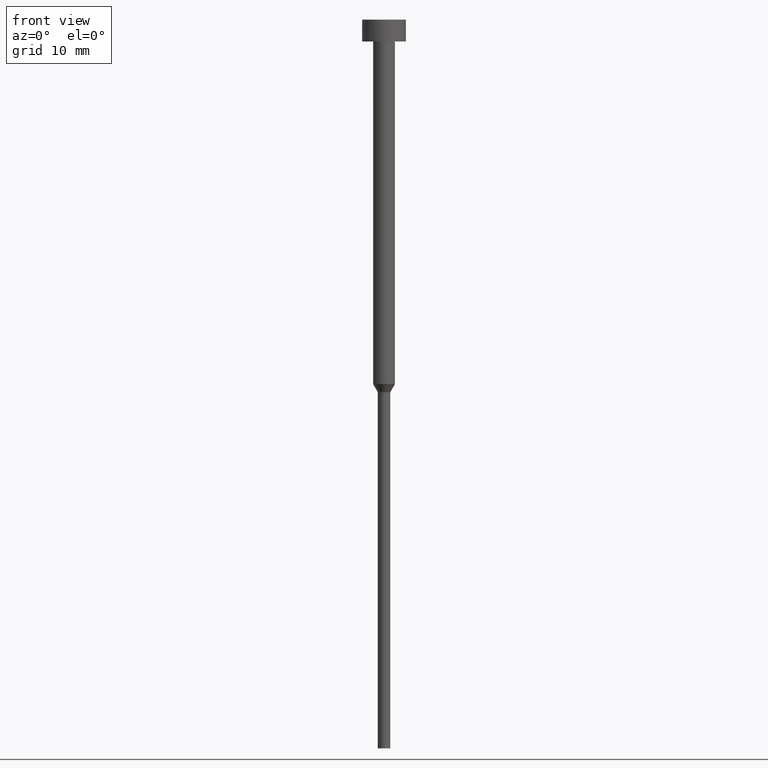
[diagram: clean part render]
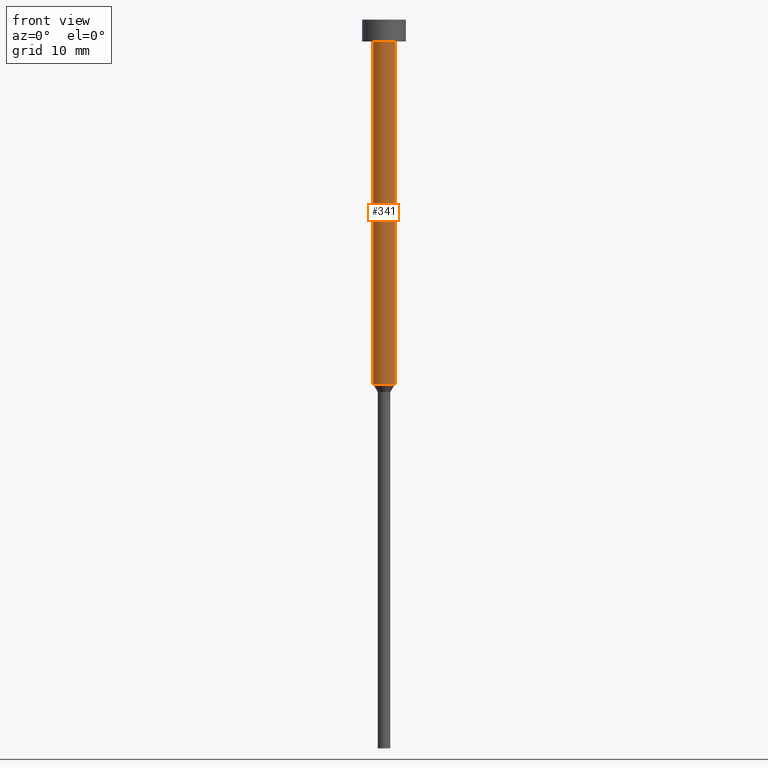
[diagram: same view with one face highlighted and labeled with its STEP entity id]
A machine part, front view. The second image highlights one B-rep face of the part: STEP entity #341.
In plain terms, the highlighted cylindrical surface (edge-blend (fillet) strip) has radius 1.5 mm, axis along (-0, -0, 1).
Its self-contained STEP definition (entity closure, byte-faithful):
#3 = CARTESIAN_POINT ( 'NONE',  ( 0.000000000000000000, 0.000000000000000000, -50.00000000000000000 ) ) ;
#12 = EDGE_CURVE ( 'NONE', #46, #157, #241, .T. ) ;
#16 = VERTEX_POINT ( 'NONE', #337 ) ;
#23 = EDGE_CURVE ( 'NONE', #16, #46, #120, .T. ) ;
#25 = LINE ( 'NONE', #275, #286 ) ;
#27 = CYLINDRICAL_SURFACE ( 'NONE', #93, 1.500000000000000000 ) ;
#46 = VERTEX_POINT ( 'NONE', #91 ) ;
#52 = FACE_OUTER_BOUND ( 'NONE', #349, .T. ) ;
#77 = CIRCLE ( 'NONE', #348, 1.500000000000000000 ) ;
#88 = DIRECTION ( 'NONE',  ( -0.000000000000000000, -0.000000000000000000, 1.000000000000000000 ) ) ;
#91 = CARTESIAN_POINT ( 'NONE',  ( -1.500000000000000000, 1.836970198721029934E-16, -3.000000000000000888 ) ) ;
#93 = AXIS2_PLACEMENT_3D ( 'NONE', #270, #308, #207 ) ;
#94 = EDGE_CURVE ( 'NONE', #340, #157, #25, .T. ) ;
#99 = VECTOR ( 'NONE', #334, 1000.000000000000000 ) ;
#101 = CARTESIAN_POINT ( 'NONE',  ( 0.000000000000000000, 0.000000000000000000, -3.000000000000000888 ) ) ;
#104 = ORIENTED_EDGE ( 'NONE', *, *, #94, .T. ) ;
#113 = AXIS2_PLACEMENT_3D ( 'NONE', #101, #125, #314 ) ;
#120 = LINE ( 'NONE', #231, #99 ) ;
#125 = DIRECTION ( 'NONE',  ( -0.000000000000000000, -0.000000000000000000, 1.000000000000000000 ) ) ;
#133 = ORIENTED_EDGE ( 'NONE', *, *, #258, .T. ) ;
#135 = DIRECTION ( 'NONE',  ( -0.000000000000000000, -0.000000000000000000, 1.000000000000000000 ) ) ;
#157 = VERTEX_POINT ( 'NONE', #272 ) ;
#207 = DIRECTION ( 'NONE',  ( 1.000000000000000000, 0.000000000000000000, 0.000000000000000000 ) ) ;
#231 = CARTESIAN_POINT ( 'NONE',  ( -1.500000000000000000, 1.836970198721029934E-16, 0.000000000000000000 ) ) ;
#241 = CIRCLE ( 'NONE', #113, 1.500000000000000000 ) ;
#258 = EDGE_CURVE ( 'NONE', #16, #340, #77, .T. ) ;
#270 = CARTESIAN_POINT ( 'NONE',  ( 0.000000000000000000, 0.000000000000000000, 0.000000000000000000 ) ) ;
#272 = CARTESIAN_POINT ( 'NONE',  ( 1.500000000000000000, 0.000000000000000000, -3.000000000000000888 ) ) ;
#275 = CARTESIAN_POINT ( 'NONE',  ( 1.500000000000000000, 0.000000000000000000, 0.000000000000000000 ) ) ;
#286 = VECTOR ( 'NONE', #135, 1000.000000000000000 ) ;
#292 = CARTESIAN_POINT ( 'NONE',  ( 1.500000000000000000, 0.000000000000000000, -50.00000000000000000 ) ) ;
#299 = DIRECTION ( 'NONE',  ( 1.000000000000000000, 0.000000000000000000, 0.000000000000000000 ) ) ;
#308 = DIRECTION ( 'NONE',  ( -0.000000000000000000, -0.000000000000000000, 1.000000000000000000 ) ) ;
#314 = DIRECTION ( 'NONE',  ( 1.000000000000000000, 0.000000000000000000, 0.000000000000000000 ) ) ;
#318 = ORIENTED_EDGE ( 'NONE', *, *, #23, .F. ) ;
#334 = DIRECTION ( 'NONE',  ( -0.000000000000000000, -0.000000000000000000, 1.000000000000000000 ) ) ;
#337 = CARTESIAN_POINT ( 'NONE',  ( -1.500000000000000000, 1.836970198721029934E-16, -50.00000000000000000 ) ) ;
#340 = VERTEX_POINT ( 'NONE', #292 ) ;
#341 = ADVANCED_FACE ( 'NONE', ( #52 ), #27, .T. ) ;
#347 = ORIENTED_EDGE ( 'NONE', *, *, #12, .F. ) ;
#348 = AXIS2_PLACEMENT_3D ( 'NONE', #3, #88, #299 ) ;
#349 = EDGE_LOOP ( 'NONE', ( #318, #133, #104, #347 ) ) ;